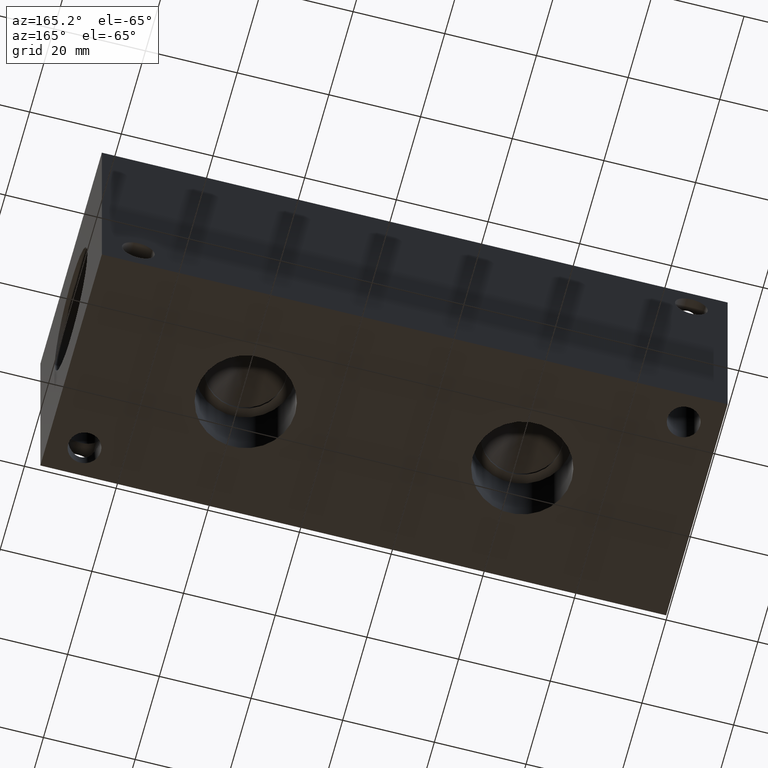
[diagram: clean part render]
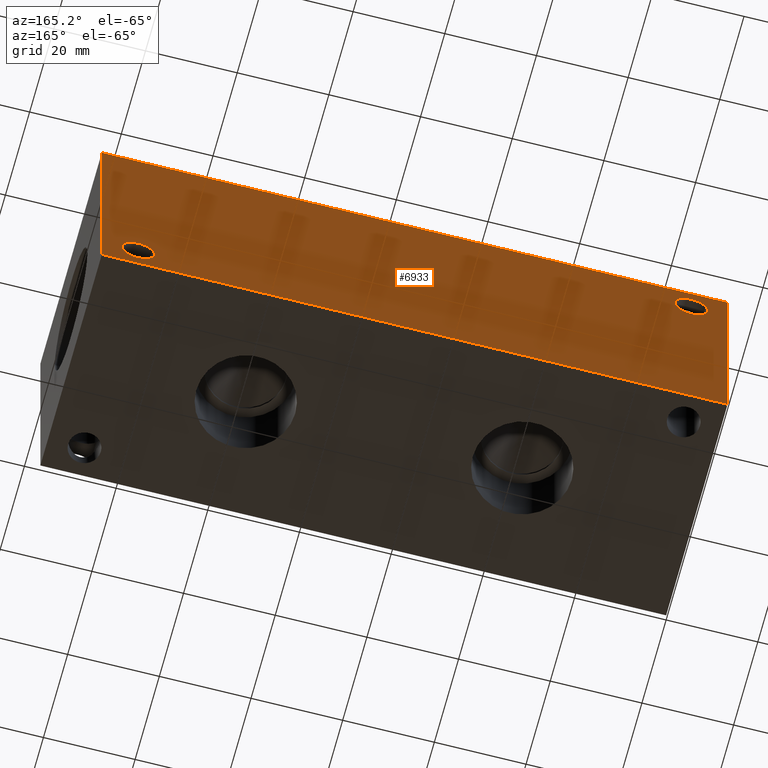
[diagram: same view with one face highlighted and labeled with its STEP entity id]
A machine part, auxiliary view. The second image highlights one B-rep face of the part: STEP entity #6933.
In plain terms, the highlighted planar face has unit normal (0, 1, 0).
Its self-contained STEP definition (entity closure, byte-faithful):
#72=CIRCLE('',#7201,3.5687);
#75=CIRCLE('',#7210,3.5687);
#143=FACE_BOUND('',#1114,.T.);
#144=FACE_BOUND('',#1115,.T.);
#370=PLANE('',#7258);
#721=FACE_OUTER_BOUND('',#1113,.T.);
#1113=EDGE_LOOP('',(#6149,#6150,#6151,#6152));
#1114=EDGE_LOOP('',(#6153));
#1115=EDGE_LOOP('',(#6154));
#1397=LINE('',#10722,#2080);
#1804=LINE('',#11822,#2487);
#1805=LINE('',#11825,#2488);
#1806=LINE('',#11826,#2489);
#2080=VECTOR('',#7673,10.);
#2487=VECTOR('',#8554,10.);
#2488=VECTOR('',#8557,10.);
#2489=VECTOR('',#8558,10.);
#3003=VERTEX_POINT('',#10719);
#3004=VERTEX_POINT('',#10721);
#3295=VERTEX_POINT('',#11706);
#3300=VERTEX_POINT('',#11722);
#3331=VERTEX_POINT('',#11818);
#3333=VERTEX_POINT('',#11824);
#3793=EDGE_CURVE('',#3003,#3004,#1397,.T.);
#4224=EDGE_CURVE('',#3295,#3295,#72,.T.);
#4233=EDGE_CURVE('',#3300,#3300,#75,.T.);
#4278=EDGE_CURVE('',#3331,#3004,#1804,.T.);
#4279=EDGE_CURVE('',#3333,#3331,#1805,.T.);
#4280=EDGE_CURVE('',#3333,#3003,#1806,.T.);
#6149=ORIENTED_EDGE('',*,*,#4279,.T.);
#6150=ORIENTED_EDGE('',*,*,#4278,.T.);
#6151=ORIENTED_EDGE('',*,*,#3793,.F.);
#6152=ORIENTED_EDGE('',*,*,#4280,.F.);
#6153=ORIENTED_EDGE('',*,*,#4224,.T.);
#6154=ORIENTED_EDGE('',*,*,#4233,.T.);
#6933=ADVANCED_FACE('',(#721,#143,#144),#370,.T.);
#7201=AXIS2_PLACEMENT_3D('',#11708,#8420,#8421);
#7210=AXIS2_PLACEMENT_3D('',#11724,#8440,#8441);
#7258=AXIS2_PLACEMENT_3D('',#11823,#8555,#8556);
#7673=DIRECTION('',(-1.,0.,0.));
#8420=DIRECTION('center_axis',(0.,-1.,0.));
#8421=DIRECTION('ref_axis',(1.,0.,0.));
#8440=DIRECTION('center_axis',(0.,-1.,0.));
#8441=DIRECTION('ref_axis',(1.,0.,0.));
#8554=DIRECTION('',(0.,0.,1.));
#8555=DIRECTION('center_axis',(0.,1.,0.));
#8556=DIRECTION('ref_axis',(-1.,0.,0.));
#8557=DIRECTION('',(-1.,0.,0.));
#8558=DIRECTION('',(0.,0.,1.));
#10719=CARTESIAN_POINT('',(136.525,50.8,50.8));
#10721=CARTESIAN_POINT('',(0.,50.8,50.8));
#10722=CARTESIAN_POINT('',(136.525,50.8,50.8));
#11706=CARTESIAN_POINT('',(4.3561,50.8,44.45));
#11708=CARTESIAN_POINT('Origin',(7.9248,50.8,44.45));
#11722=CARTESIAN_POINT('',(125.0061,50.8,6.35));
#11724=CARTESIAN_POINT('Origin',(128.5748,50.8,6.35));
#11818=CARTESIAN_POINT('',(0.,50.8,0.));
#11822=CARTESIAN_POINT('',(0.,50.8,0.));
#11823=CARTESIAN_POINT('Origin',(136.525,50.8,0.));
#11824=CARTESIAN_POINT('',(136.525,50.8,0.));
#11825=CARTESIAN_POINT('',(136.525,50.8,0.));
#11826=CARTESIAN_POINT('',(136.525,50.8,0.));